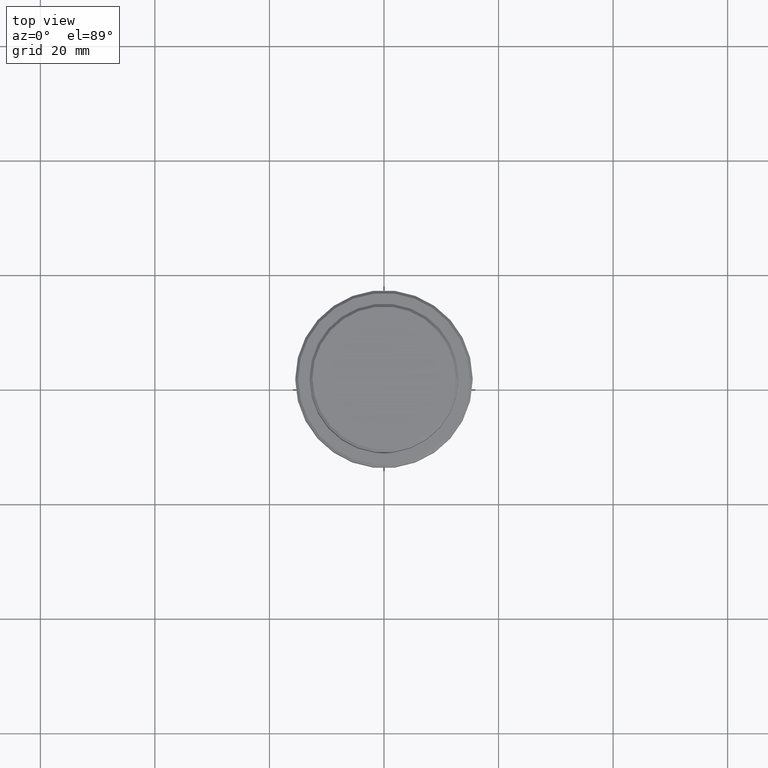
[diagram: clean part render]
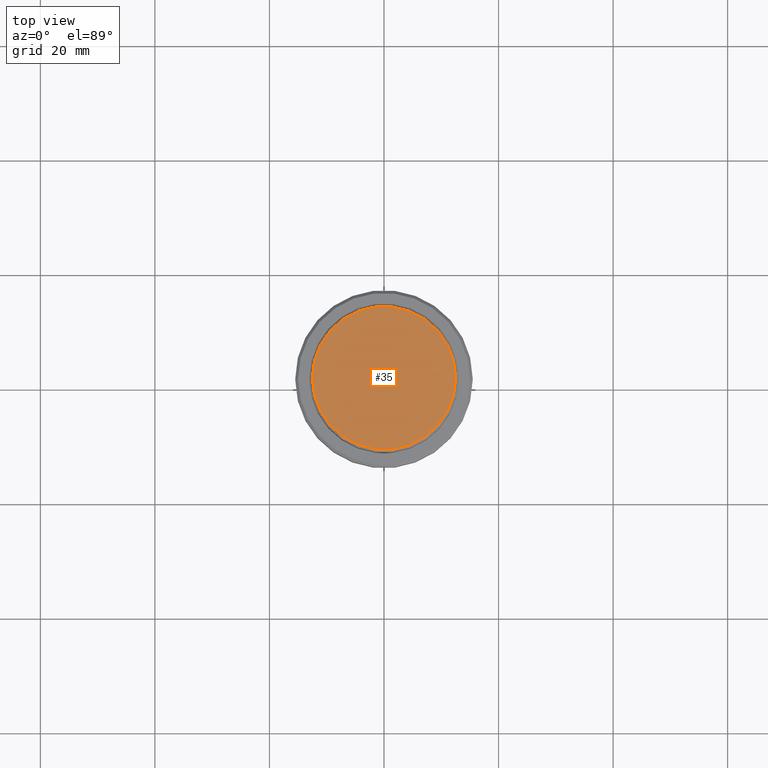
[diagram: same view with one face highlighted and labeled with its STEP entity id]
A machine part, top view. The second image highlights one B-rep face of the part: STEP entity #35.
In plain terms, the highlighted planar face has unit normal (0, -0, 1).
Its self-contained STEP definition (entity closure, byte-faithful):
#35 = ADVANCED_FACE ( 'NONE', ( #1136 ), #527, .T. ) ;
#95 = AXIS2_PLACEMENT_3D ( 'NONE', #447, #988, #1112 ) ;
#98 = VERTEX_POINT ( 'NONE', #305 ) ;
#264 = EDGE_LOOP ( 'NONE', ( #584, #347 ) ) ;
#288 = DIRECTION ( 'NONE',  ( 1.000000000000000000, 0.000000000000000000, 0.000000000000000000 ) ) ;
#298 = VERTEX_POINT ( 'NONE', #1190 ) ;
#305 = CARTESIAN_POINT ( 'NONE',  ( -12.49999999999997158, 0.000000000000000000, 0.000000000000000000 ) ) ;
#342 = CIRCLE ( 'NONE', #95, 12.49999999999997158 ) ;
#347 = ORIENTED_EDGE ( 'NONE', *, *, #1369, .T. ) ;
#447 = CARTESIAN_POINT ( 'NONE',  ( 0.000000000000000000, 0.000000000000000000, 0.000000000000000000 ) ) ;
#527 = PLANE ( 'NONE',  #1322 ) ;
#560 = AXIS2_PLACEMENT_3D ( 'NONE', #623, #947, #1170 ) ;
#584 = ORIENTED_EDGE ( 'NONE', *, *, #1124, .T. ) ;
#623 = CARTESIAN_POINT ( 'NONE',  ( 0.000000000000000000, 0.000000000000000000, 0.000000000000000000 ) ) ;
#945 = CIRCLE ( 'NONE', #560, 12.49999999999997158 ) ;
#947 = DIRECTION ( 'NONE',  ( -0.000000000000000000, -0.000000000000000000, 1.000000000000000000 ) ) ;
#988 = DIRECTION ( 'NONE',  ( -0.000000000000000000, -0.000000000000000000, 1.000000000000000000 ) ) ;
#1112 = DIRECTION ( 'NONE',  ( 1.000000000000000000, 0.000000000000000000, 0.000000000000000000 ) ) ;
#1124 = EDGE_CURVE ( 'NONE', #98, #298, #342, .T. ) ;
#1136 = FACE_OUTER_BOUND ( 'NONE', #264, .T. ) ;
#1170 = DIRECTION ( 'NONE',  ( 1.000000000000000000, 0.000000000000000000, 0.000000000000000000 ) ) ;
#1190 = CARTESIAN_POINT ( 'NONE',  ( 12.49999999999997158, 1.561424668912873336E-15, 0.000000000000000000 ) ) ;
#1271 = DIRECTION ( 'NONE',  ( 0.000000000000000000, -0.000000000000000000, 1.000000000000000000 ) ) ;
#1322 = AXIS2_PLACEMENT_3D ( 'NONE', #1397, #1271, #288 ) ;
#1369 = EDGE_CURVE ( 'NONE', #298, #98, #945, .T. ) ;
#1397 = CARTESIAN_POINT ( 'NONE',  ( 0.000000000000000000, 0.000000000000000000, 0.000000000000000000 ) ) ;